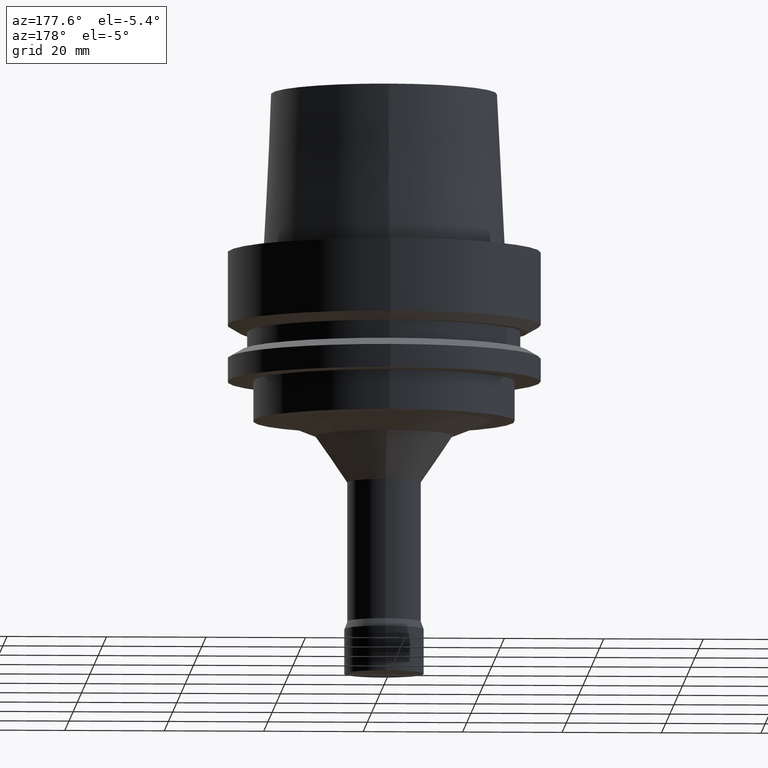
[diagram: clean part render]
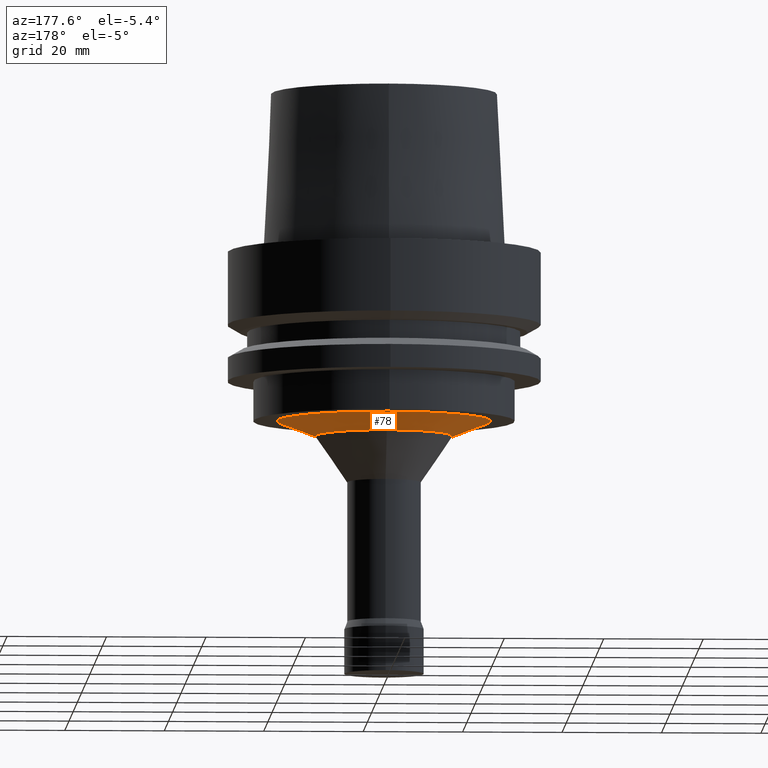
[diagram: same view with one face highlighted and labeled with its STEP entity id]
A machine part, auxiliary view. The second image highlights one B-rep face of the part: STEP entity #78.
In plain terms, the highlighted conical surface has half-angle 68.777 deg.
Its self-contained STEP definition (entity closure, byte-faithful):
#78=ADVANCED_FACE('',(#104,#105),#106,.T.);
#104=FACE_BOUND('',#159,.T.);
#105=FACE_BOUND('',#160,.T.);
#106=CONICAL_SURFACE('',#161,17.6716630157836,1.20039159367849);
#159=EDGE_LOOP('',(#220));
#160=EDGE_LOOP('',(#221));
#161=AXIS2_PLACEMENT_3D('',#222,#223,#224);
#220=ORIENTED_EDGE('',*,*,#302,.F.);
#221=ORIENTED_EDGE('',*,*,#301,.T.);
#222=CARTESIAN_POINT('',(2.17443490368365E-015,4.3488698073673E-015,-35.51121687));
#223=DIRECTION('',(-6.12323399573677E-017,-1.22464679914735E-016,1.0));
#224=DIRECTION('',(-1.23259516440783E-032,1.0,1.22464679914735E-016));
#301=EDGE_CURVE('',#322,#322,#323,.T.);
#302=EDGE_CURVE('',#324,#324,#325,.T.);
#322=VERTEX_POINT('',#358);
#323=CIRCLE('',#359,21.5632534815672);
#324=VERTEX_POINT('',#360);
#325=CIRCLE('',#361,13.78007255);
#358=CARTESIAN_POINT('',(2.0818995585505E-015,21.5632534815672,-34.0));
#359=AXIS2_PLACEMENT_3D('',#397,#398,#399);
#360=CARTESIAN_POINT('',(2.2669702488168E-015,13.78007255,-37.02243374));
#361=AXIS2_PLACEMENT_3D('',#400,#401,#402);
#397=CARTESIAN_POINT('',(2.0818995585505E-015,4.163799117101E-015,-34.0));
#398=DIRECTION('',(6.12323399573677E-017,1.22464679914735E-016,-1.0));
#399=DIRECTION('',(-1.23259516440783E-032,1.0,1.22464679914735E-016));
#400=CARTESIAN_POINT('',(2.2669702488168E-015,4.5339404976336E-015,-37.02243374));
#401=DIRECTION('',(6.12323399573677E-017,1.22464679914735E-016,-1.0));
#402=DIRECTION('',(-1.23259516440783E-032,1.0,1.22464679914735E-016));